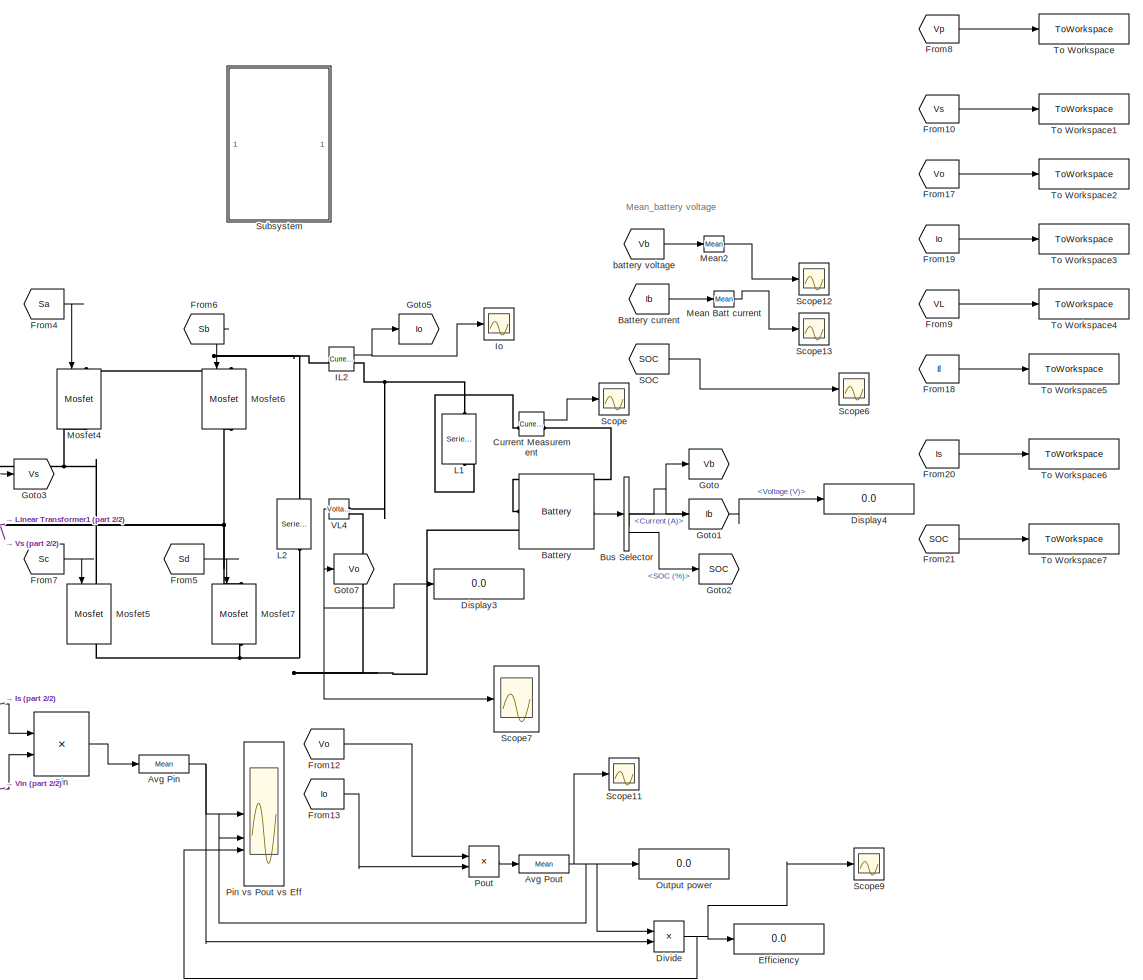
[diagram: root canvas - part 1/2, right side, full height]
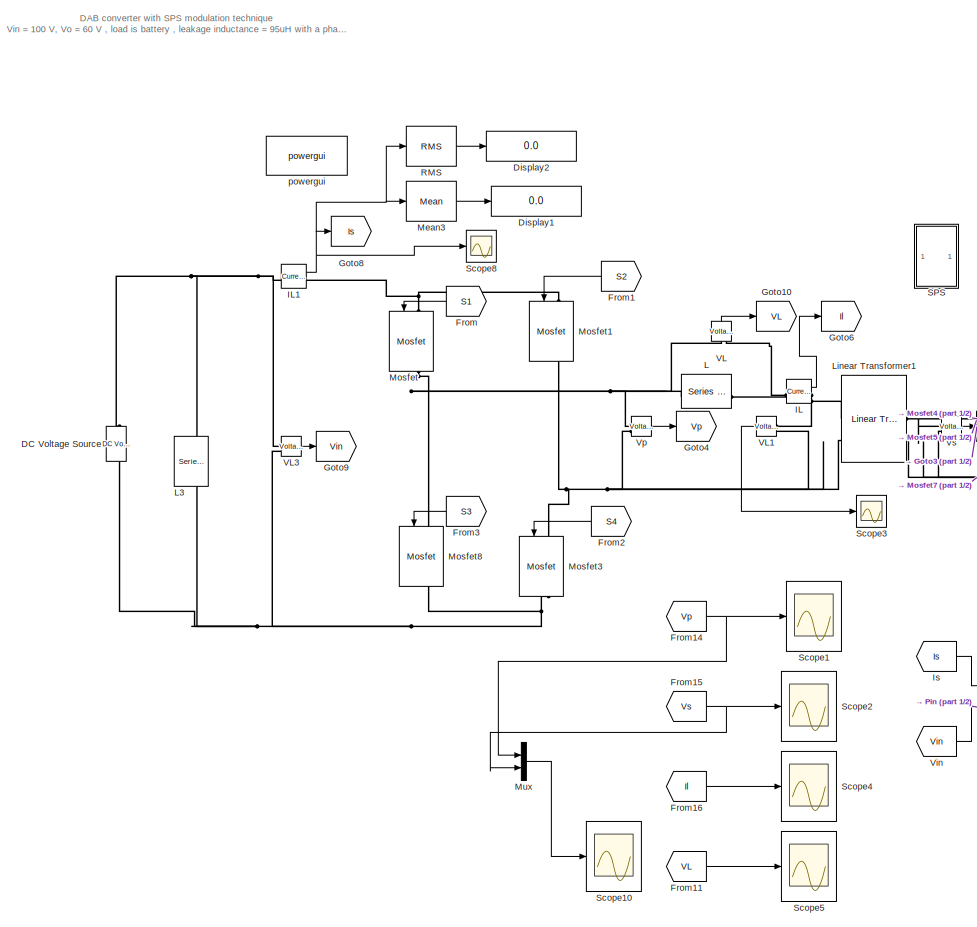
[diagram: root canvas - part 2/2, left side, full height]
MODEL slx_ac03e16aba35
KIND model
CONFIG AbsTol = auto
CONFIG EnableMultiTasking = off
CONFIG FixedStep = auto
CONFIG MaxStep = auto
CONFIG MinStep = auto
CONFIG RelTol = 1e-3
CONFIG SampleTimeConstraint = Unconstrained
CONFIG SolverName = VariableStepAuto
CONFIG StartTime = 0.0
CONFIG StopTime = 0.5
BLOCK [Reference] Avg Pin  REF=spsMeanLib/Mean
  LibrarySourceBlock = sps_lib/Sensors and Measurements/Mean
  SourceBlock = spsMeanLib/Mean
  SourceType = Mean
BLOCK [Reference] Avg Pout  REF=spsMeanLib/Mean
  LibrarySourceBlock = sps_lib/Sensors and Measurements/Mean
  SourceBlock = spsMeanLib/Mean
  SourceType = Mean
BLOCK [Reference] Battery  REF=spsBatteryLib/Battery
  SourceBlock = spsBatteryLib/Battery
  SourceType = Battery
BLOCK [From] Battery current
  GotoTag = Ib
  TagVisibility = global
BLOCK [BusSelector] Bus Selector
  OutputSignals = Voltage (V),Current (A),SOC (%)
BLOCK [Reference] Current Measurement  REF=spsCurrentMeasurementLib/Current Measurement
  LibrarySourceBlock = sps_lib/Sensors and Measurements/Current Measurement
  SourceBlock = spsCurrentMeasurementLib/Current Measurement
  SourceType = Current Measurement
  UserDataPersistent = on
BLOCK [Reference] DC Voltage Source  REF=spsDCVoltageSourceLib/DC Voltage Source
  SourceBlock = spsDCVoltageSourceLib/DC Voltage Source
  SourceType = DC Voltage Source
BLOCK [Display] Display1
  Decimation = 1
BLOCK [Display] Display2
  Decimation = 1
BLOCK [Display] Display3
  Decimation = 1
BLOCK [Display] Display4
  Decimation = 1
BLOCK [Product] Divide
  Inputs = */
BLOCK [Display] Efficiency
  Decimation = 1
BLOCK [From] From
  GotoTag = S1
  NameLocation = top
  TagVisibility = global
BLOCK [From] From1
  GotoTag = S2
  NameLocation = top
  TagVisibility = global
BLOCK [From] From10
  GotoTag = Vs
  TagVisibility = global
BLOCK [From] From11
  GotoTag = VL
  TagVisibility = global
BLOCK [From] From12
  GotoTag = Vo
  TagVisibility = global
BLOCK [From] From13
  GotoTag = Io
  TagVisibility = global
BLOCK [From] From14
  GotoTag = Vp
  NameLocation = top
  TagVisibility = global
BLOCK [From] From15
  GotoTag = Vs
  TagVisibility = global
BLOCK [From] From16
  GotoTag = Il
  TagVisibility = global
BLOCK [From] From17
  GotoTag = Vo
  TagVisibility = global
BLOCK [From] From18
  GotoTag = Il
  TagVisibility = global
BLOCK [From] From19
  GotoTag = Io
  TagVisibility = global
BLOCK [From] From2
  GotoTag = S4
  NameLocation = top
  TagVisibility = global
BLOCK [From] From20
  GotoTag = Is
  TagVisibility = global
BLOCK [From] From21
  GotoTag = SOC
  TagVisibility = global
BLOCK [From] From3
  GotoTag = S3
  NameLocation = top
  TagVisibility = global
BLOCK [From] From4
  GotoTag = Sa
  TagVisibility = global
BLOCK [From] From5
  GotoTag = Sd
  TagVisibility = global
BLOCK [From] From6
  GotoTag = Sb
  TagVisibility = global
BLOCK [From] From7
  GotoTag = Sc
  TagVisibility = global
BLOCK [From] From8
  GotoTag = Vp
  TagVisibility = global
BLOCK [From] From9
  GotoTag = VL
  TagVisibility = global
BLOCK [Goto] Goto
  GotoTag = Vb
  TagVisibility = global
BLOCK [Goto] Goto1
  GotoTag = Ib
  TagVisibility = global
BLOCK [Goto] Goto10
  GotoTag = VL
  TagVisibility = global
BLOCK [Goto] Goto2
  GotoTag = SOC
  TagVisibility = global
BLOCK [Goto] Goto3
  GotoTag = Vs
  TagVisibility = global
BLOCK [Goto] Goto4
  GotoTag = Vp
  TagVisibility = global
BLOCK [Goto] Goto5
  GotoTag = Io
  TagVisibility = global
BLOCK [Goto] Goto6
  GotoTag = Il
  TagVisibility = global
BLOCK [Goto] Goto7
  GotoTag = Vo
  TagVisibility = global
BLOCK [Goto] Goto8
  GotoTag = Is
  TagVisibility = global
BLOCK [Goto] Goto9
  GotoTag = Vin
  TagVisibility = global
BLOCK [Reference] IL  REF=spsCurrentMeasurementLib/Current Measurement
  SourceBlock = spsCurrentMeasurementLib/Current Measurement
  SourceType = Current Measurement
  UserDataPersistent = on
BLOCK [Reference] IL1  REF=spsCurrentMeasurementLib/Current Measurement
  SourceBlock = spsCurrentMeasurementLib/Current Measurement
  SourceType = Current Measurement
  UserDataPersistent = on
BLOCK [Reference] IL2  REF=spsCurrentMeasurementLib/Current Measurement
  SourceBlock = spsCurrentMeasurementLib/Current Measurement
  SourceType = Current Measurement
  UserDataPersistent = on
BLOCK [Scope] Io
  Floating = off
  NumInputPorts = 1
  ScopeSpecificationString = Simulink.scopes.TimeScopeBlockCfg('CurrentConfiguration', extmgr.ConfigurationSet(extmgr.Configuration('Core','General UI',true,'FigureColor',[1 1 1]),extmgr.Configuration('Core','Source UI',true),extmgr.Configuration('Sources','WiredSimulink',true,'DataLoggingVariableName','ScopeData1'),extmgr.Configuration('Visuals','Time Domain',true,'SerializedDisplays',{struct('MinYLimReal','51.73644','MaxYLi...<+1762ch>
BLOCK [From] Is
  GotoTag = Is
  TagVisibility = global
BLOCK [Reference] L  REF=spsSeriesRLCBranchLib/Series RLC Branch
  SourceBlock = spsSeriesRLCBranchLib/Series RLC Branch
  SourceType = Series RLC Branch
BLOCK [Reference] L1  REF=spsSeriesRLCBranchLib/Series RLC Branch
  NameLocation = left
  SourceBlock = spsSeriesRLCBranchLib/Series RLC Branch
  SourceType = Series RLC Branch
BLOCK [Reference] L2  REF=spsSeriesRLCBranchLib/Series RLC Branch
  NameLocation = left
  SourceBlock = spsSeriesRLCBranchLib/Series RLC Branch
  SourceType = Series RLC Branch
BLOCK [Reference] L3  REF=spsSeriesRLCBranchLib/Series RLC Branch
  NameLocation = left
  SourceBlock = spsSeriesRLCBranchLib/Series RLC Branch
  SourceType = Series RLC Branch
BLOCK [Reference] Linear Transformer1  REF=spsLinearTransformerLib/Linear Transformer
  SourceBlock = spsLinearTransformerLib/Linear Transformer
  SourceType = Linear Transformer
BLOCK [Reference] Mean Batt current  REF=spsMeanLib/Mean
  SourceBlock = spsMeanLib/Mean
  SourceType = Mean
BLOCK [Reference] Mean2  REF=spsMeanLib/Mean
  SourceBlock = spsMeanLib/Mean
  SourceType = Mean
BLOCK [Reference] Mean3  REF=spsMeanLib/Mean
  SourceBlock = spsMeanLib/Mean
  SourceType = Mean
BLOCK [Reference] Mosfet  REF=spsMosfetLib/Mosfet
  NameLocation = left
  SourceBlock = spsMosfetLib/Mosfet
  SourceType = Mosfet
BLOCK [Reference] Mosfet1  REF=spsMosfetLib/Mosfet
  NameLocation = left
  SourceBlock = spsMosfetLib/Mosfet
  SourceType = Mosfet
BLOCK [Reference] Mosfet3  REF=spsMosfetLib/Mosfet
  NameLocation = left
  SourceBlock = spsMosfetLib/Mosfet
  SourceType = Mosfet
BLOCK [Reference] Mosfet4  REF=spsMosfetLib/Mosfet
  NameLocation = left
  SourceBlock = spsMosfetLib/Mosfet
  SourceType = Mosfet
BLOCK [Reference] Mosfet5  REF=spsMosfetLib/Mosfet
  NameLocation = left
  SourceBlock = spsMosfetLib/Mosfet
  SourceType = Mosfet
BLOCK [Reference] Mosfet6  REF=spsMosfetLib/Mosfet
  NameLocation = left
  SourceBlock = spsMosfetLib/Mosfet
  SourceType = Mosfet
BLOCK [Reference] Mosfet7  REF=spsMosfetLib/Mosfet
  NameLocation = left
  SourceBlock = spsMosfetLib/Mosfet
  SourceType = Mosfet
BLOCK [Reference] Mosfet8  REF=spsMosfetLib/Mosfet
  NameLocation = left
  SourceBlock = spsMosfetLib/Mosfet
  SourceType = Mosfet
BLOCK [Mux] Mux
  DisplayOption = bar
  Inputs = 2
BLOCK [Display] Output power
  Decimation = 1
BLOCK [Product] Pin
BLOCK [Scope] Pin vs Pout vs Eff 
  Floating = off
  NumInputPorts = 3
  ScopeSpecificationString = Simulink.scopes.TimeScopeBlockCfg('CurrentConfiguration', extmgr.ConfigurationSet(extmgr.Configuration('Core','General UI',true,'DisplayFullSourceName',false,'ShowMainToolbar',true,'FigureColor',[1 1 1]),extmgr.Configuration('Sources','WiredSimulink',true,'DataLogging',false,'DataLoggingVariableName','ScopeData3','DataLoggingLimitDataPoints',false,'DataLoggingMaxPoints','5000','DataLoggingDecimate...<+4257ch>
BLOCK [Product] Pout
BLOCK [Reference] RMS  REF=spsRMSLib/RMS
  SourceBlock = spsRMSLib/RMS
  SourceType = RMS
BLOCK [From] SOC
  GotoTag = SOC
  TagVisibility = global
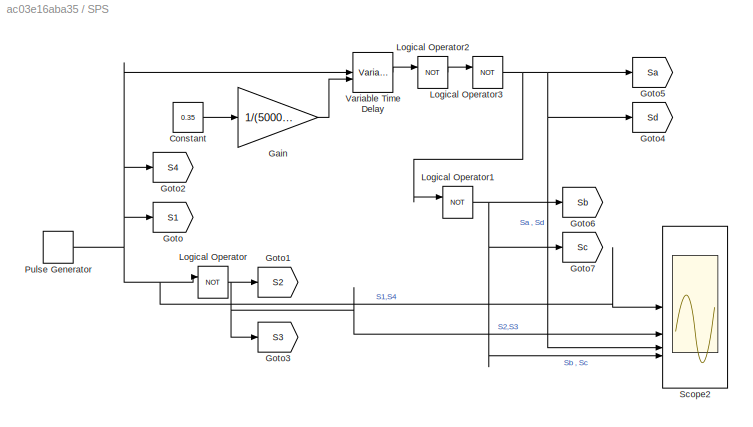
BLOCK [SubSystem] SPS
BLOCK [Constant] SPS/Constant
  Value = 0.35
BLOCK [Gain] SPS/Gain
  Gain = 1/(50000*2)
BLOCK [Goto] SPS/Goto
  GotoTag = S1
  TagVisibility = global
BLOCK [Goto] SPS/Goto1
  GotoTag = S2
  TagVisibility = global
BLOCK [Goto] SPS/Goto2
  GotoTag = S4
  TagVisibility = global
BLOCK [Goto] SPS/Goto3
  GotoTag = S3
  TagVisibility = global
BLOCK [Goto] SPS/Goto4
  GotoTag = Sd
  TagVisibility = global
BLOCK [Goto] SPS/Goto5
  GotoTag = Sa
  TagVisibility = global
BLOCK [Goto] SPS/Goto6
  GotoTag = Sb
  TagVisibility = global
BLOCK [Goto] SPS/Goto7
  GotoTag = Sc
  TagVisibility = global
BLOCK [Logic] SPS/Logical Operator
  AllPortsSameDT = off
  Operator = NOT
  OutDataTypeStr = boolean
BLOCK [Logic] SPS/Logical Operator1
  AllPortsSameDT = off
  Operator = NOT
  OutDataTypeStr = boolean
BLOCK [Logic] SPS/Logical Operator2
  AllPortsSameDT = off
  Operator = NOT
  OutDataTypeStr = boolean
BLOCK [Logic] SPS/Logical Operator3
  AllPortsSameDT = off
  Operator = NOT
  OutDataTypeStr = boolean
BLOCK [DiscretePulseGenerator] SPS/Pulse Generator
  Period = 1/50000
  PulseType = Time based
  PulseWidth = 50
BLOCK [Scope] SPS/Scope2
  Floating = off
  NumInputPorts = 4
  ScopeSpecificationString = Simulink.scopes.TimeScopeBlockCfg('CurrentConfiguration', extmgr.ConfigurationSet(extmgr.Configuration('Core','General UI',true,'DisplayFullSourceName',false,'ShowMainToolbar',true,'FigureColor',[1 1 1]),extmgr.Configuration('Sources','WiredSimulink',true,'DataLogging',false,'DataLoggingVariableName','ScopeData1','DataLoggingLimitDataPoints',false,'DataLoggingMaxPoints','5000','DataLoggingDecimate...<+4710ch>
BLOCK [VariableTransportDelay] SPS/Variable Time Delay
  MaximumDelay = 10
BLOCK [Scope] Scope
  Floating = off
  NumInputPorts = 1
  ScopeSpecificationString = Simulink.scopes.TimeScopeBlockCfg('CurrentConfiguration', extmgr.ConfigurationSet(extmgr.Configuration('Core','General UI',true,'FigureColor',[1 1 1]),extmgr.Configuration('Core','Source UI',true),extmgr.Configuration('Sources','WiredSimulink',true,'DataLoggingVariableName','ScopeData3'),extmgr.Configuration('Visuals','Time Domain',true,'SerializedDisplays',{struct('MinYLimReal','-4853.4591','MaxY...<+1572ch>
BLOCK [Scope] Scope1
  Floating = off
  NumInputPorts = 1
  ScopeSpecificationString = Simulink.scopes.TimeScopeBlockCfg('CurrentConfiguration', extmgr.ConfigurationSet(extmgr.Configuration('Core','General UI',true,'FigureColor',[1 1 1]),extmgr.Configuration('Core','Source UI',true),extmgr.Configuration('Sources','WiredSimulink',true,'DataLoggingVariableName','ScopeData2'),extmgr.Configuration('Visuals','Time Domain',true,'SerializedDisplays',{struct('MinYLimReal','-500.16413','MaxY...<+1892ch>
BLOCK [Scope] Scope10
  Floating = off
  NumInputPorts = 1
  ScopeSpecificationString = Simulink.scopes.TimeScopeBlockCfg('CurrentConfiguration', extmgr.ConfigurationSet(extmgr.Configuration('Core','General UI',true,'FigureColor',[1 1 1]),extmgr.Configuration('Core','Source UI',true),extmgr.Configuration('Sources','WiredSimulink',true,'DataLoggingVariableName','ScopeData1'),extmgr.Configuration('Visuals','Time Domain',true,'SerializedDisplays',{struct('MinYLimReal','-82.95529','MaxYL...<+1914ch>
BLOCK [Scope] Scope11
  Floating = off
  NumInputPorts = 1
  ScopeSpecificationString = Simulink.scopes.TimeScopeBlockCfg('CurrentConfiguration', extmgr.ConfigurationSet(extmgr.Configuration('Core','General UI',true,'FigureColor',[1 1 1]),extmgr.Configuration('Core','Source UI',true),extmgr.Configuration('Sources','WiredSimulink',true,'DataLoggingVariableName','ScopeData2'),extmgr.Configuration('Visuals','Time Domain',true,'SerializedDisplays',{struct('MinYLimReal','0','MaxYLimReal',...<+1688ch>
BLOCK [Scope] Scope12
  Floating = off
  NumInputPorts = 1
  ScopeSpecificationString = Simulink.scopes.TimeScopeBlockCfg('CurrentConfiguration', extmgr.ConfigurationSet(extmgr.Configuration('Core','General UI',true,'FigureColor',[1 1 1]),extmgr.Configuration('Core','Source UI',true),extmgr.Configuration('Sources','WiredSimulink',true,'DataLoggingVariableName','ScopeData1'),extmgr.Configuration('Visuals','Time Domain',true,'SerializedDisplays',{struct('MinYLimReal','-8.19486','MaxYLi...<+1795ch>
BLOCK [Scope] Scope13
  Floating = off
  NumInputPorts = 1
  ScopeSpecificationString = Simulink.scopes.TimeScopeBlockCfg('CurrentConfiguration', extmgr.ConfigurationSet(extmgr.Configuration('Core','General UI',true,'FigureColor',[1 1 1]),extmgr.Configuration('Core','Source UI',true),extmgr.Configuration('Sources','WiredSimulink',true,'DataLoggingVariableName','ScopeData2'),extmgr.Configuration('Visuals','Time Domain',true,'SerializedDisplays',{struct('MinYLimReal','-247.78644','MaxY...<+1789ch>
BLOCK [Scope] Scope2
  Floating = off
  NumInputPorts = 1
  ScopeSpecificationString = Simulink.scopes.TimeScopeBlockCfg('CurrentConfiguration', extmgr.ConfigurationSet(extmgr.Configuration('Core','General UI',true,'FigureColor',[1 1 1]),extmgr.Configuration('Core','Source UI',true),extmgr.Configuration('Sources','WiredSimulink',true),extmgr.Configuration('Visuals','Time Domain',true,'SerializedDisplays',{struct('MinYLimReal','-82.95529','MaxYLimReal','83.22356','YLabelReal','v_S (V...<+1870ch>
BLOCK [Scope] Scope3
  Floating = off
  NumInputPorts = 1
  ScopeSpecificationString = Simulink.scopes.TimeScopeBlockCfg('CurrentConfiguration', extmgr.ConfigurationSet(extmgr.Configuration('Core','General UI',true,'DisplayFullSourceName',false,'ShowMainToolbar',true,'FigureColor',[0.129411764705882 0.129411764705882 0.129411764705882]),extmgr.Configuration('Sources','WiredSimulink',true,'DataLogging',false,'DataLoggingVariableName','ScopeData4','DataLoggingLimitDataPoints',false,'D...<+2217ch>
BLOCK [Scope] Scope4
  Floating = off
  NumInputPorts = 1
  ScopeSpecificationString = Simulink.scopes.TimeScopeBlockCfg('CurrentConfiguration', extmgr.ConfigurationSet(extmgr.Configuration('Core','General UI',true,'FigureColor',[1 1 1]),extmgr.Configuration('Core','Source UI',true),extmgr.Configuration('Sources','WiredSimulink',true,'DataLoggingVariableName','ScopeData5'),extmgr.Configuration('Visuals','Time Domain',true,'SerializedDisplays',{struct('MinYLimReal','-22.00861','MaxYL...<+1859ch>
BLOCK [Scope] Scope5
  Floating = off
  NumInputPorts = 1
  ScopeSpecificationString = Simulink.scopes.TimeScopeBlockCfg('CurrentConfiguration', extmgr.ConfigurationSet(extmgr.Configuration('Core','General UI',true,'FigureColor',[1 1 1]),extmgr.Configuration('Core','Source UI',true),extmgr.Configuration('Sources','WiredSimulink',true,'DataLoggingVariableName','ScopeData6'),extmgr.Configuration('Visuals','Time Domain',true,'SerializedDisplays',{struct('MinYLimReal','-1060.59462','Max...<+1849ch>
BLOCK [Scope] Scope6
  Floating = off
  NumInputPorts = 1
  ScopeSpecificationString = Simulink.scopes.TimeScopeBlockCfg('CurrentConfiguration', extmgr.ConfigurationSet(extmgr.Configuration('Core','General UI',true,'FigureColor',[1 1 1]),extmgr.Configuration('Core','Source UI',true),extmgr.Configuration('Sources','WiredSimulink',true,'DataLoggingVariableName','ScopeData10'),extmgr.Configuration('Visuals','Time Domain',true,'SerializedDisplays',{struct('MinYLimReal','60.0215977','Max...<+1887ch>
BLOCK [Scope] Scope7
  Floating = off
  NumInputPorts = 1
  ScopeSpecificationString = Simulink.scopes.TimeScopeBlockCfg('CurrentConfiguration', extmgr.ConfigurationSet(extmgr.Configuration('Core','General UI',true,'FigureColor',[1 1 1]),extmgr.Configuration('Core','Source UI',true),extmgr.Configuration('Sources','WiredSimulink',true,'DataLoggingVariableName','ScopeData7'),extmgr.Configuration('Visuals','Time Domain',true,'SerializedDisplays',{struct('MinYLimReal','65.168','MaxYLimR...<+1854ch>
BLOCK [Scope] Scope8
  Floating = off
  NumInputPorts = 1
  ScopeSpecificationString = Simulink.scopes.TimeScopeBlockCfg('CurrentConfiguration', extmgr.ConfigurationSet(extmgr.Configuration('Core','General UI',true,'FigureColor',[1 1 1]),extmgr.Configuration('Core','Source UI',true),extmgr.Configuration('Sources','WiredSimulink',true,'DataLoggingVariableName','ScopeData2'),extmgr.Configuration('Visuals','Time Domain',true,'SerializedDisplays',{struct('MinYLimReal','-16.89558','MaxYL...<+1773ch>
BLOCK [Scope] Scope9
  Floating = off
  NumInputPorts = 1
  ScopeSpecificationString = Simulink.scopes.TimeScopeBlockCfg('CurrentConfiguration', extmgr.ConfigurationSet(extmgr.Configuration('Core','General UI',true,'FigureColor',[1 1 1]),extmgr.Configuration('Core','Source UI',true),extmgr.Configuration('Sources','WiredSimulink',true,'DataLoggingVariableName','ScopeData3'),extmgr.Configuration('Visuals','Time Domain',true,'SerializedDisplays',{struct('MinYLimReal','0.967386633','Max...<+1703ch>
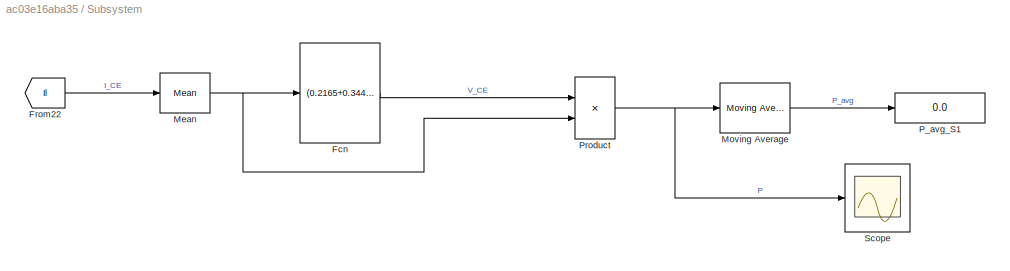
BLOCK [SubSystem] Subsystem
BLOCK [Fcn] Subsystem/Fcn
  Expr = (0.2165+0.3449)*exp(0.03993*u(1))
BLOCK [From] Subsystem/From22
  GotoTag = Il
  TagVisibility = global
BLOCK [Reference] Subsystem/Mean  REF=spsMeanLib/Mean
  LibrarySourceBlock = sps_lib/Sensors and Measurements/Mean
  SourceBlock = spsMeanLib/Mean
  SourceType = Mean
BLOCK [Reference] Subsystem/Moving Average  REF=eeGeneralControl/Moving Average
  LibrarySourceBlock = ee_sl_lib/General Control/Moving Average
  SourceBlock = eeGeneralControl/Moving Average
  SourceType = Moving Average
BLOCK [Display] Subsystem/P_avg_S1
  Decimation = 1
BLOCK [Product] Subsystem/Product
BLOCK [Scope] Subsystem/Scope
  Floating = off
  NumInputPorts = 1
  ScopeSpecificationString = Simulink.scopes.TimeScopeBlockCfg('CurrentConfiguration', extmgr.ConfigurationSet(extmgr.Configuration('Core','General UI',true),extmgr.Configuration('Core','Source UI',true),extmgr.Configuration('Sources','WiredSimulink',true,'DataLoggingVariableName','ScopeData1'),extmgr.Configuration('Visuals','Time Domain',true,'SerializedDisplays',{struct('MinYLimReal','-0.01774','MaxYLimReal','0.11817','YLab...<+1402ch>
BLOCK [ToWorkspace] To Workspace
  FixptAsFi = on
  MaxDataPoints = inf
  SampleTime = -1
  SaveFormat = Structure With Time
  VariableName = Vp
BLOCK [ToWorkspace] To Workspace1
  FixptAsFi = on
  MaxDataPoints = inf
  SampleTime = -1
  SaveFormat = Structure
  VariableName = Vs
BLOCK [ToWorkspace] To Workspace2
  FixptAsFi = on
  MaxDataPoints = inf
  SampleTime = -1
  SaveFormat = Structure
  VariableName = Vo
BLOCK [ToWorkspace] To Workspace3
  FixptAsFi = on
  MaxDataPoints = inf
  SampleTime = -1
  SaveFormat = Structure
  VariableName = Io
BLOCK [ToWorkspace] To Workspace4
  FixptAsFi = on
  MaxDataPoints = inf
  SampleTime = -1
  SaveFormat = Structure
  VariableName = VL
BLOCK [ToWorkspace] To Workspace5
  FixptAsFi = on
  MaxDataPoints = inf
  SampleTime = -1
  SaveFormat = Structure
  VariableName = IL
BLOCK [ToWorkspace] To Workspace6
  FixptAsFi = on
  MaxDataPoints = inf
  SampleTime = -1
  SaveFormat = Structure
  VariableName = Is
BLOCK [ToWorkspace] To Workspace7
  FixptAsFi = on
  MaxDataPoints = inf
  SampleTime = -1
  SaveFormat = Structure
  VariableName = SOC
BLOCK [Reference] VL  REF=spsVoltageMeasurementLib/Voltage Measurement
  NameLocation = right
  SourceBlock = spsVoltageMeasurementLib/Voltage Measurement
  SourceType = Voltage Measurement
  UserDataPersistent = on
BLOCK [Reference] VL1  REF=spsVoltageMeasurementLib/Voltage Measurement
  NameLocation = top
  SourceBlock = spsVoltageMeasurementLib/Voltage Measurement
  SourceType = Voltage Measurement
  UserDataPersistent = on
BLOCK [Reference] VL3  REF=spsVoltageMeasurementLib/Voltage Measurement
  SourceBlock = spsVoltageMeasurementLib/Voltage Measurement
  SourceType = Voltage Measurement
  UserDataPersistent = on
BLOCK [Reference] VL4  REF=spsVoltageMeasurementLib/Voltage Measurement
  NameLocation = top
  SourceBlock = spsVoltageMeasurementLib/Voltage Measurement
  SourceType = Voltage Measurement
  UserDataPersistent = on
BLOCK [From] Vin
  GotoTag = Vin
  TagVisibility = global
BLOCK [Reference] Vp  REF=spsVoltageMeasurementLib/Voltage Measurement
  SourceBlock = spsVoltageMeasurementLib/Voltage Measurement
  SourceType = Voltage Measurement
  UserDataPersistent = on
BLOCK [Reference] Vs  REF=spsVoltageMeasurementLib/Voltage Measurement
  SourceBlock = spsVoltageMeasurementLib/Voltage Measurement
  SourceType = Voltage Measurement
  UserDataPersistent = on
BLOCK [From] battery voltage
  GotoTag = Vb
  TagVisibility = global
BLOCK [Reference] powergui  REF=spspowerguiLib/powergui
  Priority = 1
  SourceBlock = spspowerguiLib/powergui
  SourceType = PSB option menu block
ANNOTATION (root): DAB converter with SPS modulation technique Vin = 100 V, Vo = 60 V , load is battery , leakage inductance = 95uH with a phase shift of 63 degrees
ANNOTATION (root): Mean_battery voltage
NET Avg Pin:1 -> Divide:2, Pin vs Pout vs Eff :1
NET Avg Pout:1 -> Divide:1, Output power:1, Pin vs Pout vs Eff :2, Scope11:1
LINE Battery current:1 -> Mean Batt current:1
LINE Battery:1 -> Bus Selector:1
NET Bus Selector:1 -> Display4:1, Goto:1
LINE Bus Selector:2 -> Goto1:1
LINE Bus Selector:3 -> Goto2:1
LINE Current Measurement:1 -> Scope:1
NET Divide:1 -> Efficiency:1, Pin vs Pout vs Eff :3, Scope9:1
LINE From10:1 -> To Workspace1:1
LINE From11:1 -> Scope5:1
LINE From12:1 -> Pout:1
LINE From13:1 -> Pout:2
NET From14:1 -> Mux:1, Scope1:1
NET From15:1 -> Mux:2, Scope2:1
LINE From16:1 -> Scope4:1
LINE From17:1 -> To Workspace2:1
LINE From18:1 -> To Workspace5:1
LINE From19:1 -> To Workspace3:1
LINE From1:1 -> Mosfet1:1
LINE From20:1 -> To Workspace6:1
LINE From21:1 -> To Workspace7:1
LINE From2:1 -> Mosfet3:1
LINE From3:1 -> Mosfet8:1
LINE From4:1 -> Mosfet4:1
LINE From5:1 -> Mosfet7:1
LINE From6:1 -> Mosfet6:1
LINE From7:1 -> Mosfet5:1
LINE From8:1 -> To Workspace:1
LINE From9:1 -> To Workspace4:1
LINE From:1 -> Mosfet:1
NET IL1:1 -> Goto8:1, Mean3:1, RMS:1, Scope8:1
NET IL2:1 -> Goto5:1, Io:1
LINE IL:1 -> Goto6:1
LINE Is:1 -> Pin:1
LINE Mean Batt current:1 -> Scope13:1
LINE Mean2:1 -> Scope12:1
LINE Mean3:1 -> Display1:1
LINE Mux:1 -> Scope10:1
LINE Pin:1 -> Avg Pin:1
LINE Pout:1 -> Avg Pout:1
LINE RMS:1 -> Display2:1
LINE SOC:1 -> Scope6:1
LINE SPS/Constant:1 -> SPS/Gain:1
LINE SPS/Gain:1 -> SPS/Variable Time Delay:2
NET SPS/Logical Operator1:1 -> SPS/Goto6:1, SPS/Goto7:1, SPS/Scope2:4
LINE SPS/Logical Operator2:1 -> SPS/Logical Operator3:1
NET SPS/Logical Operator3:1 -> SPS/Goto4:1, SPS/Goto5:1, SPS/Logical Operator1:1, SPS/Scope2:3
NET SPS/Logical Operator:1 -> SPS/Goto1:1, SPS/Goto3:1, SPS/Scope2:2
NET SPS/Pulse Generator:1 -> SPS/Goto2:1, SPS/Goto:1, SPS/Logical Operator:1, SPS/Scope2:1, SPS/Variable Time Delay:1
LINE SPS/Variable Time Delay:1 -> SPS/Logical Operator2:1
LINE Subsystem/Fcn:1 -> Subsystem/Product:1
LINE Subsystem/From22:1 -> Subsystem/Mean:1
NET Subsystem/Mean:1 -> Subsystem/Fcn:1, Subsystem/Product:2
LINE Subsystem/Moving Average:1 -> Subsystem/P_avg_S1:1
NET Subsystem/Product:1 -> Subsystem/Moving Average:1, Subsystem/Scope:1
LINE VL1:1 -> Scope3:1
LINE VL3:1 -> Goto9:1
NET VL4:1 -> Display3:1, Goto7:1, Scope7:1
LINE VL:1 -> Goto10:1
LINE Vin:1 -> Pin:2
LINE Vp:1 -> Goto4:1
LINE Vs:1 -> Goto3:1
LINE battery voltage:1 -> Mean2:1
PLINE Battery:LConn1 -- Current Measurement:RConn1
PNET net1: Battery:LConn2 -- L2:RConn1 -- Mosfet5:RConn1 -- Mosfet7:RConn1 -- VL4:LConn2
PLINE Current Measurement:LConn1 -- L1:RConn1
PNET net2: DC Voltage Source:LConn1 -- L3:RConn1 -- Mosfet3:RConn1 -- Mosfet8:RConn1 -- VL3:LConn2
PNET net3: DC Voltage Source:RConn1 -- IL1:LConn1 -- L3:LConn1 -- VL3:LConn1
PNET net4: IL1:RConn1 -- Mosfet1:LConn1 -- Mosfet:LConn1
PNET net5: IL2:LConn1 -- L2:LConn1 -- Mosfet4:LConn1 -- Mosfet6:LConn1
PNET net6: IL2:RConn1 -- L1:LConn1 -- VL4:LConn1
PNET net7: IL:LConn1 -- L:RConn1 -- VL:LConn2
PNET net8: IL:RConn1 -- Linear Transformer1:LConn1 -- VL1:LConn1
PNET net9: L:LConn1 -- Mosfet8:LConn1 -- Mosfet:RConn1 -- VL:LConn1 -- Vp:LConn1
PNET net10: Linear Transformer1:LConn2 -- Mosfet1:RConn1 -- Mosfet3:LConn1 -- VL1:LConn2 -- Vp:LConn2
PNET net11: Linear Transformer1:RConn1 -- Mosfet4:RConn1 -- Mosfet5:LConn1 -- Vs:LConn1
PNET net12: Linear Transformer1:RConn2 -- Mosfet6:RConn1 -- Mosfet7:LConn1 -- Vs:LConn2
note: NET lines group one-source signal fan-out (src -> all destinations, sorted); 1:1 wires keep LINE; PNET lines group multi-terminal physical nets as a canonical sorted terminal list (undirected conserving connections); 2-terminal nets keep the pairwise PLINE form
